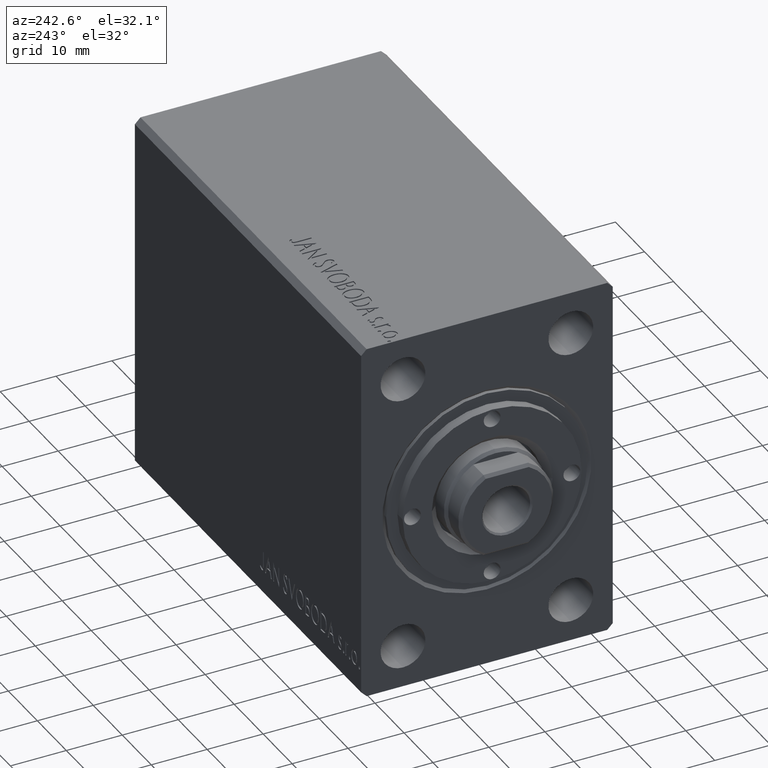
[diagram: clean part render]
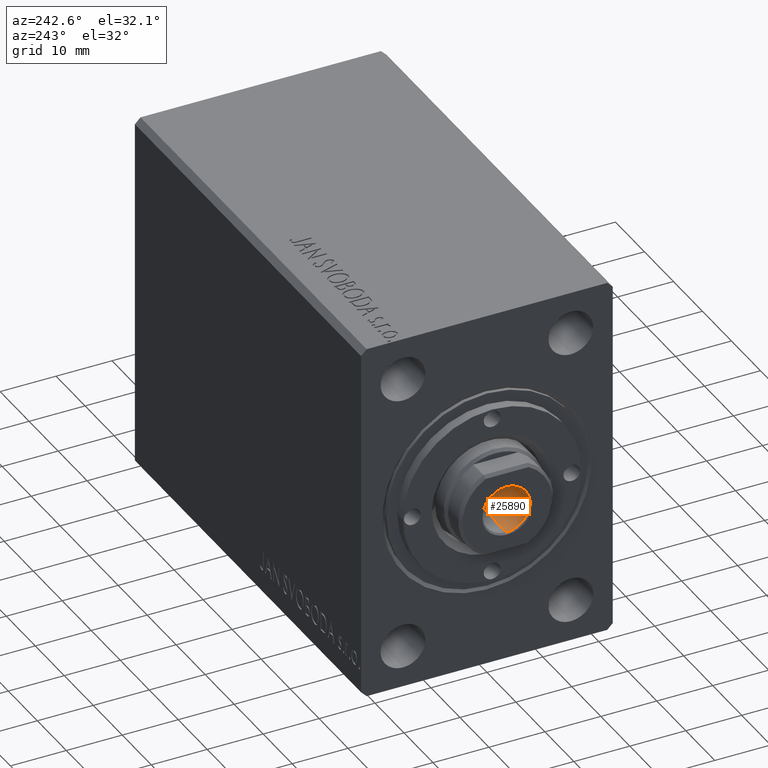
[diagram: same view with one face highlighted and labeled with its STEP entity id]
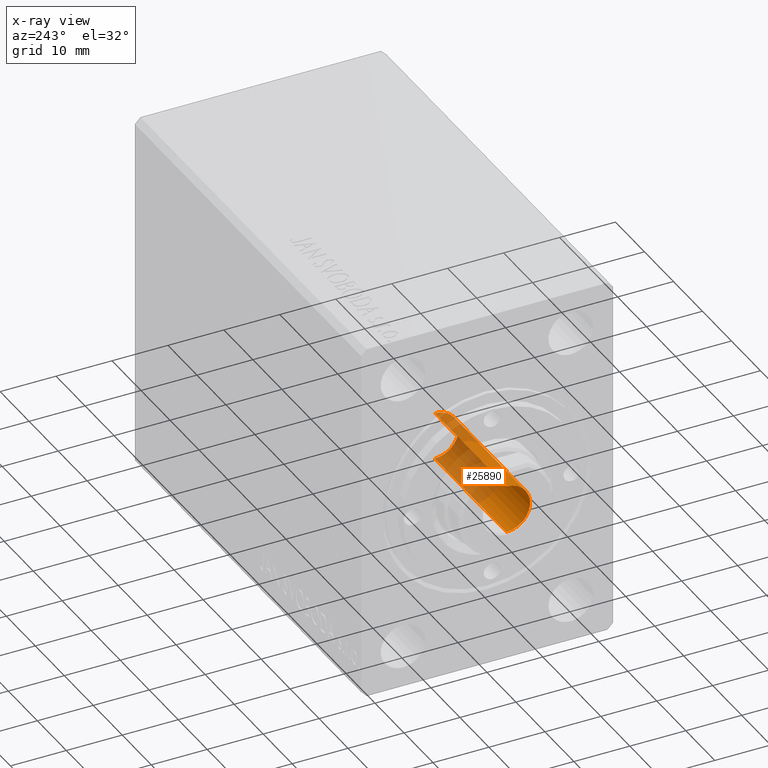
[diagram: x-ray of the same camera — body ghosted, the highlighted face saturated]
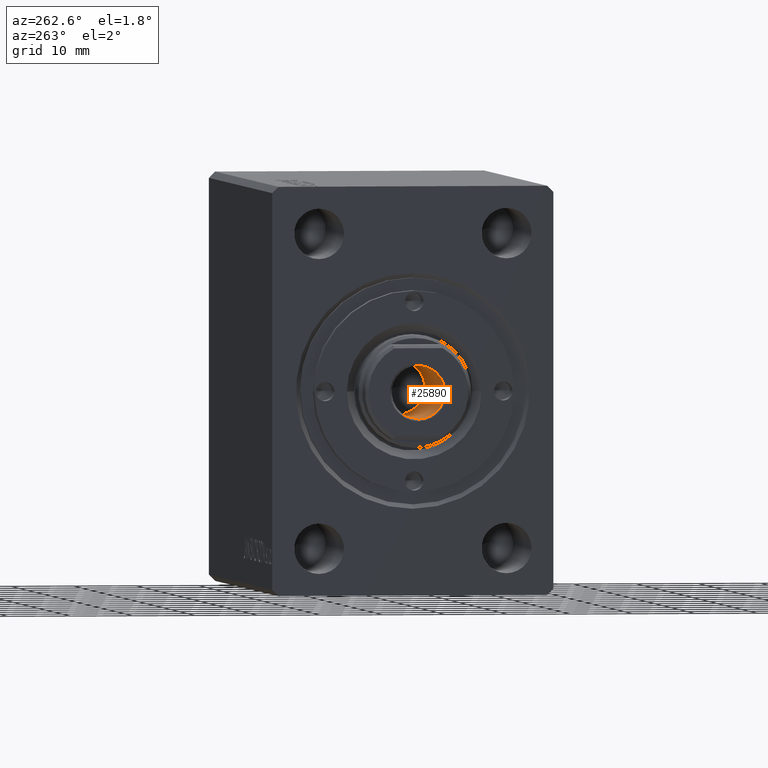
[diagram: same view with one face highlighted and labeled with its STEP entity id]
A machine part, auxiliary view. The second image highlights one B-rep face of the part: STEP entity #25890.
The next image is the same camera in x-ray: the body ghosted, the highlighted face saturated — about 52% of this face is hidden behind the body in this view.
A second angle (auxiliary view) of the same face is appended — the face is thin or edge-on in the first view.
In plain terms, the highlighted cylindrical surface (edge-blend (fillet) strip) has radius 4.25 mm, axis along (-1, 0, 0).
Its self-contained STEP definition (entity closure, byte-faithful):
#1990 = DIRECTION ( 'NONE',  ( 1.000000000000000000, 0.000000000000000000, 0.000000000000000000 ) ) ;
#3167 = CARTESIAN_POINT ( 'NONE',  ( 0.000000000000000000, 0.000000000000000000, 48.50000000000000711 ) ) ;
#4888 = DIRECTION ( 'NONE',  ( -0.000000000000000000, -0.000000000000000000, 1.000000000000000000 ) ) ;
#6266 = EDGE_CURVE ( 'NONE', #27309, #44080, #30706, .T. ) ;
#6341 = EDGE_CURVE ( 'NONE', #30433, #11744, #40299, .T. ) ;
#7930 = CARTESIAN_POINT ( 'NONE',  ( -4.249999999999994671, 5.204748896376244783E-16, 48.50000000000000711 ) ) ;
#10096 = DIRECTION ( 'NONE',  ( 1.000000000000000000, 0.000000000000000000, 0.000000000000000000 ) ) ;
#11744 = VERTEX_POINT ( 'NONE', #32377 ) ;
#14952 = CARTESIAN_POINT ( 'NONE',  ( 0.000000000000000000, 0.000000000000000000, 73.50000000000001421 ) ) ;
#15611 = FACE_OUTER_BOUND ( 'NONE', #18428, .T. ) ;
#18388 = ORIENTED_EDGE ( 'NONE', *, *, #6341, .T. ) ;
#18428 = EDGE_LOOP ( 'NONE', ( #41812, #18388, #28523, #35800 ) ) ;
#18477 = CARTESIAN_POINT ( 'NONE',  ( 0.000000000000000000, 0.000000000000000000, 73.20000000000003126 ) ) ;
#18968 = CYLINDRICAL_SURFACE ( 'NONE', #28511, 4.249999999999996447 ) ;
#22531 = AXIS2_PLACEMENT_3D ( 'NONE', #18477, #38320, #28941 ) ;
#23585 = DIRECTION ( 'NONE',  ( -0.000000000000000000, -0.000000000000000000, 1.000000000000000000 ) ) ;
#24773 = EDGE_CURVE ( 'NONE', #30433, #27309, #29877, .T. ) ;
#25890 = ADVANCED_FACE ( 'NONE', ( #15611 ), #18968, .F. ) ;
#26162 = CARTESIAN_POINT ( 'NONE',  ( 4.249999999999994671, 0.000000000000000000, 48.50000000000000711 ) ) ;
#27309 = VERTEX_POINT ( 'NONE', #26162 ) ;
#28511 = AXIS2_PLACEMENT_3D ( 'NONE', #14952, #4888, #1990 ) ;
#28523 = ORIENTED_EDGE ( 'NONE', *, *, #33790, .T. ) ;
#28941 = DIRECTION ( 'NONE',  ( 1.000000000000000000, 0.000000000000000000, 0.000000000000000000 ) ) ;
#29877 = CIRCLE ( 'NONE', #35601, 4.249999999999994671 ) ;
#30433 = VERTEX_POINT ( 'NONE', #7930 ) ;
#30706 = LINE ( 'NONE', #40531, #31441 ) ;
#30918 = CARTESIAN_POINT ( 'NONE',  ( -4.249999999999996447, 5.204748896376247741E-16, 73.50000000000001421 ) ) ;
#31441 = VECTOR ( 'NONE', #44094, 1000.000000000000000 ) ;
#32377 = CARTESIAN_POINT ( 'NONE',  ( -4.249999999999996447, 5.204748896376247741E-16, 73.20000000000003126 ) ) ;
#33790 = EDGE_CURVE ( 'NONE', #11744, #44080, #41778, .T. ) ;
#35601 = AXIS2_PLACEMENT_3D ( 'NONE', #3167, #43790, #10096 ) ;
#35800 = ORIENTED_EDGE ( 'NONE', *, *, #6266, .F. ) ;
#37153 = VECTOR ( 'NONE', #23585, 1000.000000000000000 ) ;
#38320 = DIRECTION ( 'NONE',  ( 0.000000000000000000, 0.000000000000000000, 1.000000000000000000 ) ) ;
#40299 = LINE ( 'NONE', #30918, #37153 ) ;
#40531 = CARTESIAN_POINT ( 'NONE',  ( 4.249999999999996447, 0.000000000000000000, 73.50000000000001421 ) ) ;
#41778 = CIRCLE ( 'NONE', #22531, 4.249999999999996447 ) ;
#41812 = ORIENTED_EDGE ( 'NONE', *, *, #24773, .F. ) ;
#43790 = DIRECTION ( 'NONE',  ( -0.000000000000000000, -0.000000000000000000, 1.000000000000000000 ) ) ;
#44047 = CARTESIAN_POINT ( 'NONE',  ( 4.249999999999996447, 0.000000000000000000, 73.20000000000003126 ) ) ;
#44080 = VERTEX_POINT ( 'NONE', #44047 ) ;
#44094 = DIRECTION ( 'NONE',  ( -0.000000000000000000, -0.000000000000000000, 1.000000000000000000 ) ) ;